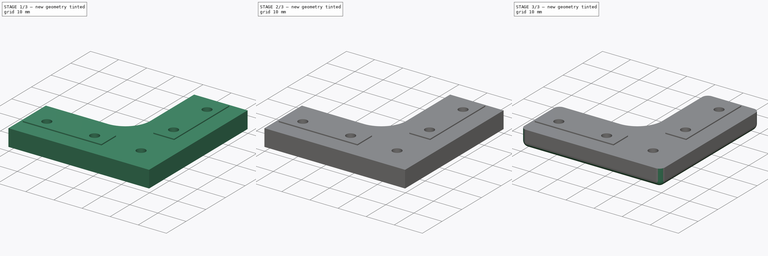
[diagram: build sequence overview — one tinted view per stage of 3, left to right]
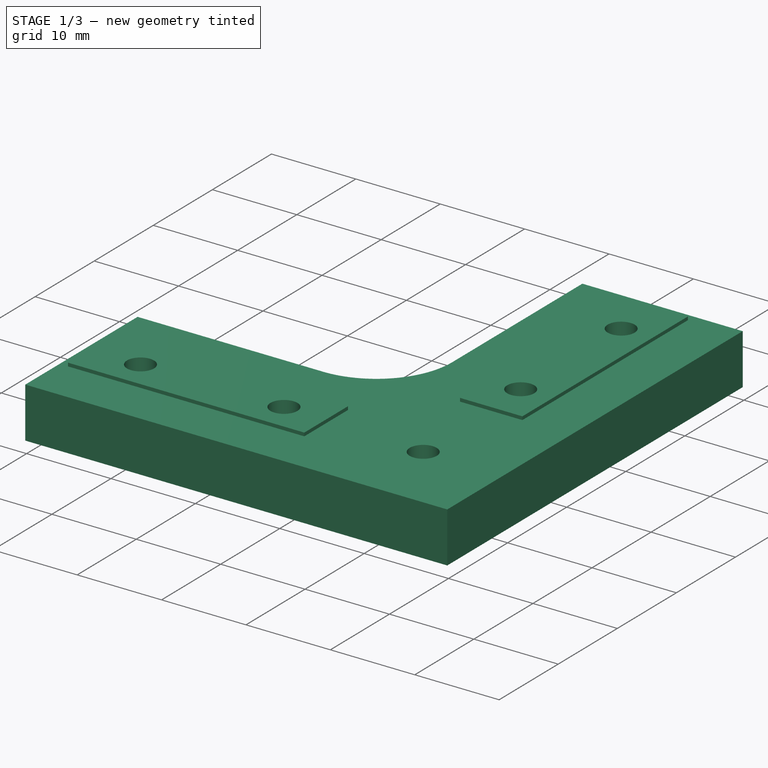
[diagram: stage 1 of 3 — iso view after this stage's code; geometry added in this stage tinted green]
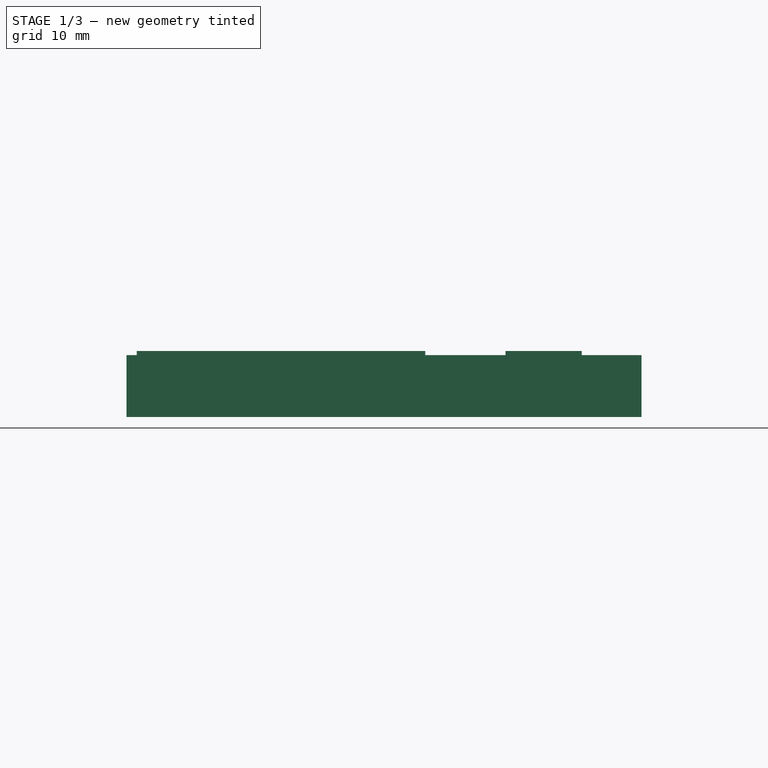
[diagram: stage 1 of 3 — front view after this stage's code; geometry added in this stage tinted green]
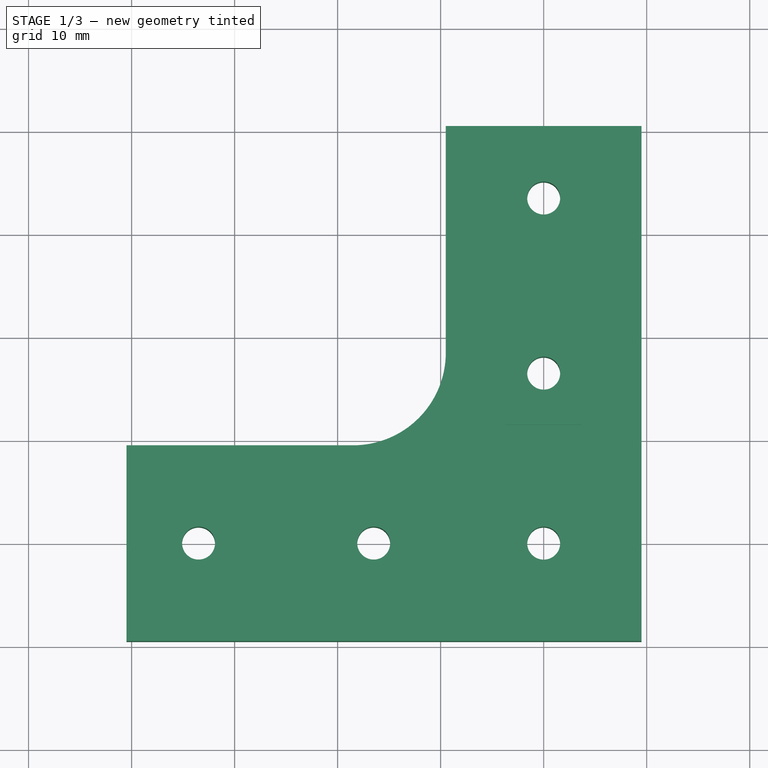
[diagram: stage 1 of 3 — top view after this stage's code; geometry added in this stage tinted green]
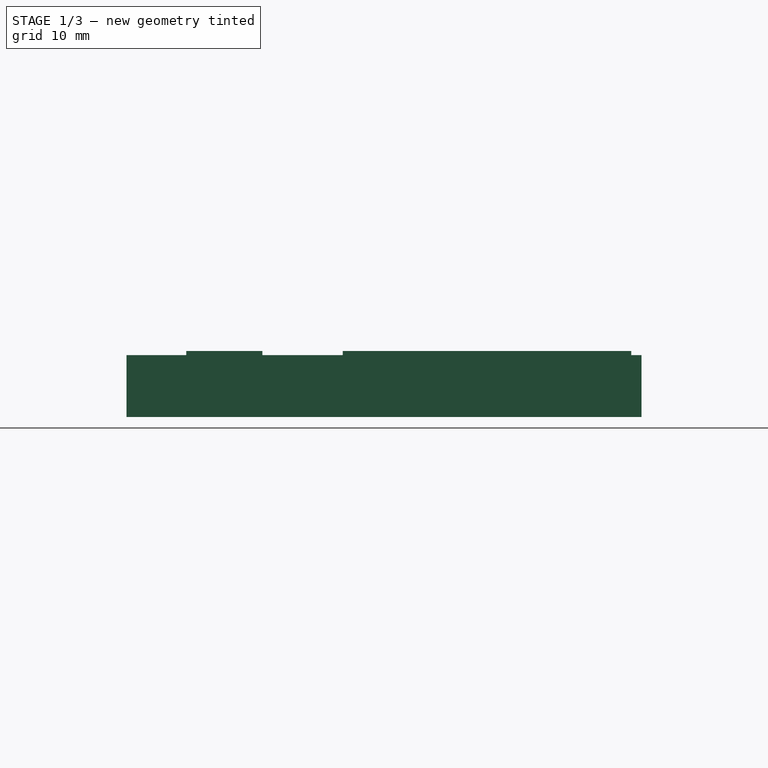
[diagram: stage 1 of 3 — right view after this stage's code; geometry added in this stage tinted green]
FCSTD DOCUMENT  (FreeCAD 0.15R4671 (Git))
Label: up-bracket
License: All rights reserved
LicenseURL: https://ru.wikipedia.org/wiki/All_rights_reserved
objects: Sketcher::SketchObject×6, PartDesign::Pad×3, PartDesign::Pocket×3, PartDesign::Fillet×1, PartDesign::Chamfer×1
note: 20 computed .brp shape members not serialized (recipe doc carries the construction recipe); baked Part::Feature solids carry a one-line shape summary decoded from their .brp

FEATURE [Sketcher::SketchObject] Sketch  label="body"
  sketch-geometry (7):
    g0: LineSegment StartX=-9.5 StartY=40.5 StartZ=0 EndX=9.5 EndY=40.5 EndZ=0
    g1: LineSegment StartX=9.5 StartY=40.5 StartZ=0 EndX=9.5 EndY=-9.5 EndZ=0
    g2: LineSegment StartX=9.5 StartY=-9.5 StartZ=0 EndX=-40.5 EndY=-9.5 EndZ=0
    g3: LineSegment StartX=-40.5 StartY=-9.5 StartZ=0 EndX=-40.5 EndY=9.5 EndZ=0
    g4: LineSegment StartX=-40.5 StartY=9.5 StartZ=0 EndX=-18.5 EndY=9.5 EndZ=0
    g5: LineSegment StartX=-9.5 StartY=18.5 StartZ=0 EndX=-9.5 EndY=40.5 EndZ=0
    g6: ArcOfCircle CenterX=-18.5 CenterY=18.5 CenterZ=0 NormalX=0 NormalY=0 NormalZ=1 Radius=9 StartAngle=4.71239 EndAngle=6.28319
  constraints (20):
    c: Horizontal(g0)
    c: Coincident(g0,g1)
    c: Vertical(g1)
    c: Coincident(g1,g2)
    c: Horizontal(g2)
    c: Coincident(g2,g3)
    c: Vertical(g3)
    c: Coincident(g3,g4)
    c: Horizontal(g4)
    c: Coincident(g5,g0)
    c: Vertical(g5)
    c: Symmetric(g0,g0,g-2)
    c: Symmetric(g3,g2,g-1)
    c: Equal(g0,g3)
    c: Equal(g2,g1)
    c: DistanceX(g2,g1) = 50
    c: DistanceY(g3,g2) = -19
    c: Tangent(g5,g6) = -1.5708
    c: Tangent(g4,g6) = -1.5708
    c: Radius(g6) = 9
FEATURE [PartDesign::Pad] Pad
  Length = 6
  Length2 = 100
  Sketch = -> Sketch
  Type = 0
FEATURE [Sketcher::SketchObject] Sketch001  label="pads"
  ExternalGeometry = -> [Pad]
  Placement = pos=(0,0,6) rot=(0,0,1;0rad)
  Support = -> Pad [Face9]
  sketch-geometry (12):
    g0: LineSegment StartX=-39.5 StartY=3.7 StartZ=0 EndX=-11.5 EndY=3.7 EndZ=0
    g1: LineSegment StartX=-11.5 StartY=3.7 StartZ=0 EndX=-11.5 EndY=-3.7 EndZ=0
    g2: LineSegment StartX=-11.5 StartY=-3.7 StartZ=0 EndX=-39.5 EndY=-3.7 EndZ=0
    g3: LineSegment StartX=-39.5 StartY=-3.7 StartZ=0 EndX=-39.5 EndY=3.7 EndZ=0
    g4: LineSegment StartX=-3.7 StartY=39.5 StartZ=0 EndX=3.7 EndY=39.5 EndZ=0
    g5: LineSegment StartX=3.7 StartY=39.5 StartZ=0 EndX=3.7 EndY=11.5 EndZ=0
    g6: LineSegment StartX=3.7 StartY=11.5 StartZ=0 EndX=-3.7 EndY=11.5 EndZ=0
    g7: LineSegment StartX=-3.7 StartY=11.5 StartZ=0 EndX=-3.7 EndY=39.5 EndZ=0
    g8: LineSegment [constr] StartX=-3.7 StartY=39.5 StartZ=0 EndX=-3.7 EndY=40.5 EndZ=0
    g9: LineSegment [constr] StartX=-39.5 StartY=3.7 StartZ=0 EndX=-40.5 EndY=3.7 EndZ=0
    g10: LineSegment [constr] StartX=-11.5 StartY=0 StartZ=0 EndX=9.5 EndY=0 EndZ=0
    g11: LineSegment [constr] StartX=0 StartY=11.5 StartZ=0 EndX=0 EndY=-9.5 EndZ=0
  constraints (38):
    c: Coincident(g0,g1)
    c: Coincident(g1,g2)
    c: Coincident(g2,g3)
    c: Coincident(g3,g0)
    c: Horizontal(g0)
    c: Horizontal(g2)
    c: Vertical(g1)
    c: Vertical(g3)
    c: Coincident(g4,g5)
    c: Coincident(g5,g6)
    c: Coincident(g6,g7)
    c: Coincident(g7,g4)
    c: Horizontal(g4)
    c: Horizontal(g6)
    c: Vertical(g5)
    c: Vertical(g7)
    c: PointOnObject(g8,g-3)
    c: Vertical(g8)
    c: PointOnObject(g9,g3)
    c: PointOnObject(g9,g-6)
    c: Horizontal(g9)
    c: PointOnObject(g10,g1)
    c: PointOnObject(g10,g-4)
    c: Horizontal(g10)
    c: PointOnObject(g11,g6)
    c: Vertical(g11)
    c: PointOnObject(g8,g4)
    c: Equal(g8,g9)
    c: PointOnObject(g11,g-5)
    c: Equal(g11,g10)
    c: Equal(g1,g6)
    c: Coincident(g4,g8)
    c: Coincident(g0,g9)
    c: Symmetric(g2,g0,g-1)
    c: Symmetric(g4,g4,g-2)
    c: DistanceY(g2,g0) = 7.4
    c: DistanceY(g5,g-5) = -21
    c: DistanceX(g9,g0) = 1
FEATURE [PartDesign::Pad] Pad001
  Length = 0.4
  Length2 = 100
  Sketch = -> Sketch001
  Type = 0
FEATURE [Sketcher::SketchObject] Sketch002  label="m3 holes"
  ExternalGeometry = -> [Pad001]
  Placement = pos=(0,0,0) rot=(1,0,0;3.14159rad)
  Support = -> Pad001 [Face4]
  sketch-geometry (9):
    g0: Circle CenterX=-33.5 CenterY=0 CenterZ=0 NormalX=0 NormalY=0 NormalZ=1 Radius=1.6
    g1: Circle CenterX=-16.5 CenterY=0 CenterZ=0 NormalX=0 NormalY=0 NormalZ=1 Radius=1.6
    g2: Circle CenterX=0 CenterY=-16.5 CenterZ=0 NormalX=0 NormalY=0 NormalZ=1 Radius=1.6
    g3: Circle CenterX=0 CenterY=-33.5 CenterZ=0 NormalX=0 NormalY=0 NormalZ=1 Radius=1.6
    g4: Circle CenterX=0 CenterY=0 CenterZ=0 NormalX=0 NormalY=0 NormalZ=1 Radius=1.6
    g5: LineSegment [constr] StartX=-33.5 StartY=0 StartZ=0 EndX=-40.5 EndY=0 EndZ=0
    g6: LineSegment [constr] StartX=0 StartY=-33.5 StartZ=0 EndX=0 EndY=-40.5 EndZ=0
    g7: LineSegment [constr] StartX=-16.5 StartY=0 StartZ=0 EndX=9.5 EndY=0 EndZ=0
    g8: LineSegment [constr] StartX=0 StartY=-16.5 StartZ=0 EndX=0 EndY=9.5 EndZ=0
  constraints (26):
    c: PointOnObject(g0,g-1)
    c: PointOnObject(g1,g-1)
    c: PointOnObject(g2,g-2)
    c: PointOnObject(g3,g-2)
    c: Equal(g3,g2)
    c: Equal(g2,g1)
    c: Equal(g1,g0)
    c: Radius(g0) = 1.6
    c: Coincident(g5,g0)
    c: PointOnObject(g5,g-3)
    c: Horizontal(g5)
    c: Coincident(g6,g3)
    c: PointOnObject(g6,g-4)
    c: Vertical(g6)
    c: Coincident(g7,g1)
    c: PointOnObject(g7,g-6)
    c: Horizontal(g7)
    c: Coincident(g8,g2)
    c: PointOnObject(g8,g-5)
    c: Vertical(g8)
    c: DistanceX(g5) = -7
    c: Equal(g6,g5)
    c: Equal(g8,g7)
    c: DistanceX(g7) = 26
    c: Coincident(g4,g-1)
    c: Equal(g1,g4)
FEATURE [PartDesign::Pocket] Pocket
  Length = 5
  Sketch = -> Sketch002
  Type = 1
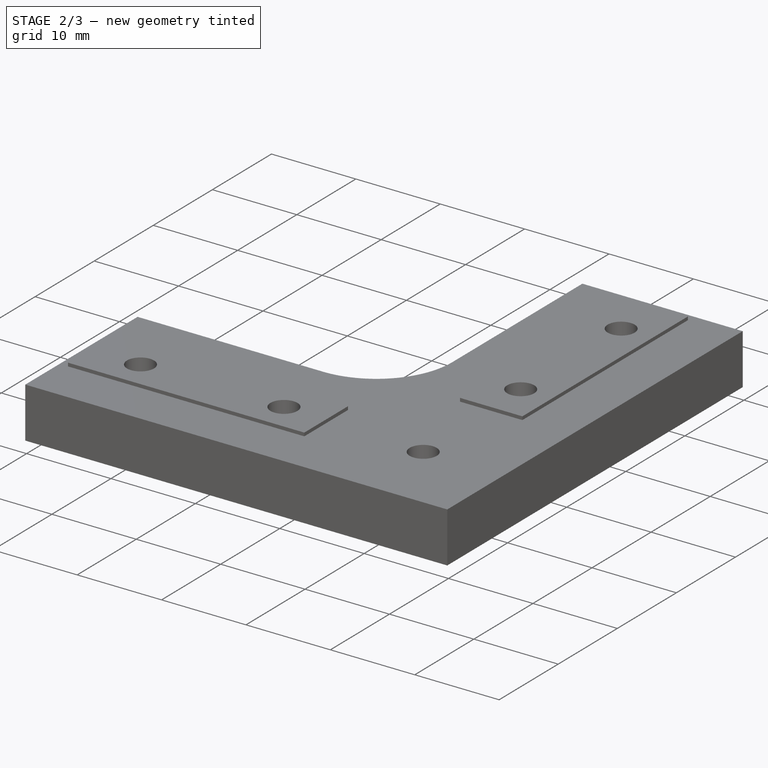
[diagram: stage 2 of 3 — iso view after this stage's code; geometry added in this stage tinted green]
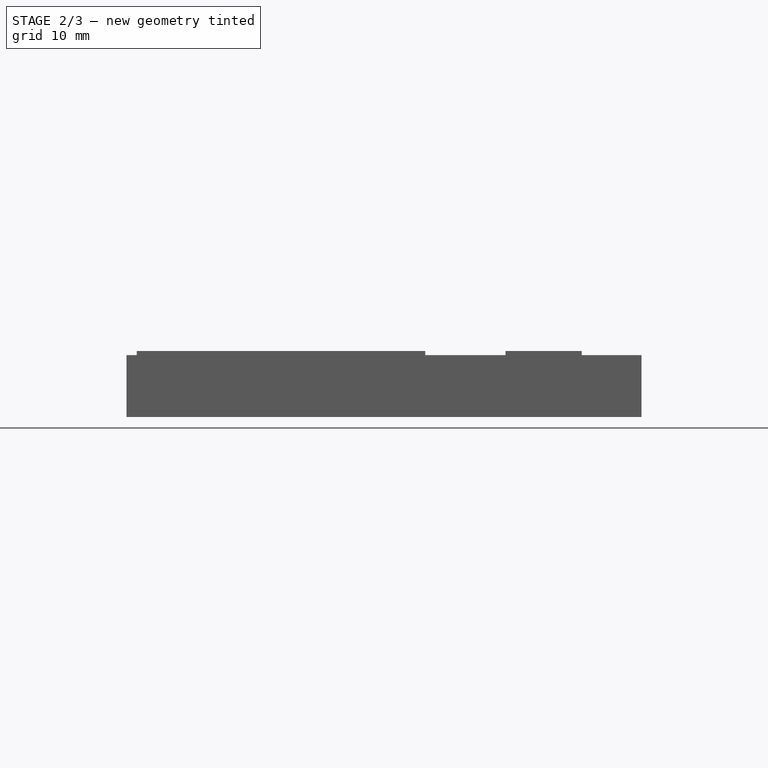
[diagram: stage 2 of 3 — front view after this stage's code; geometry added in this stage tinted green]
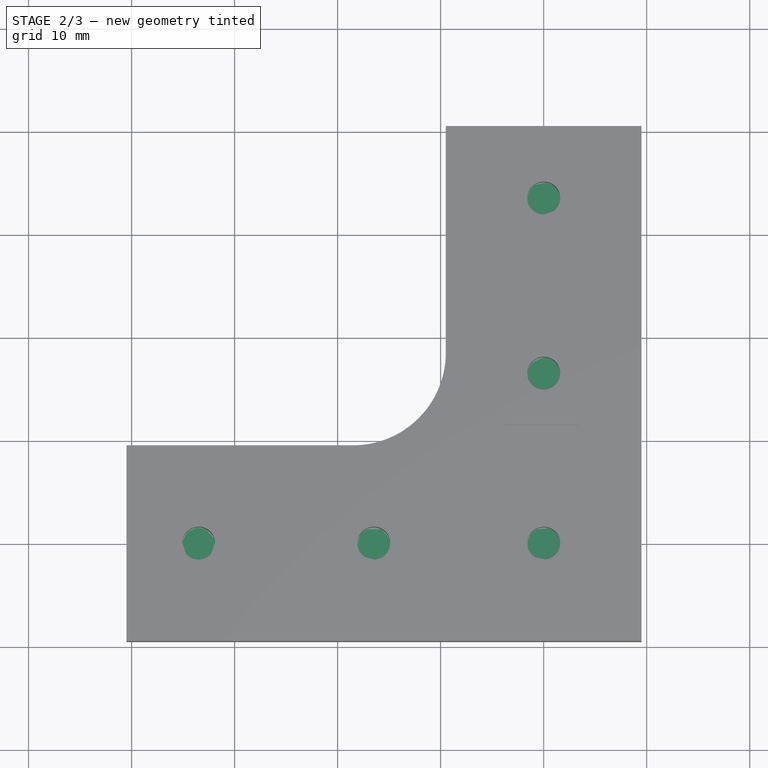
[diagram: stage 2 of 3 — top view after this stage's code; geometry added in this stage tinted green]
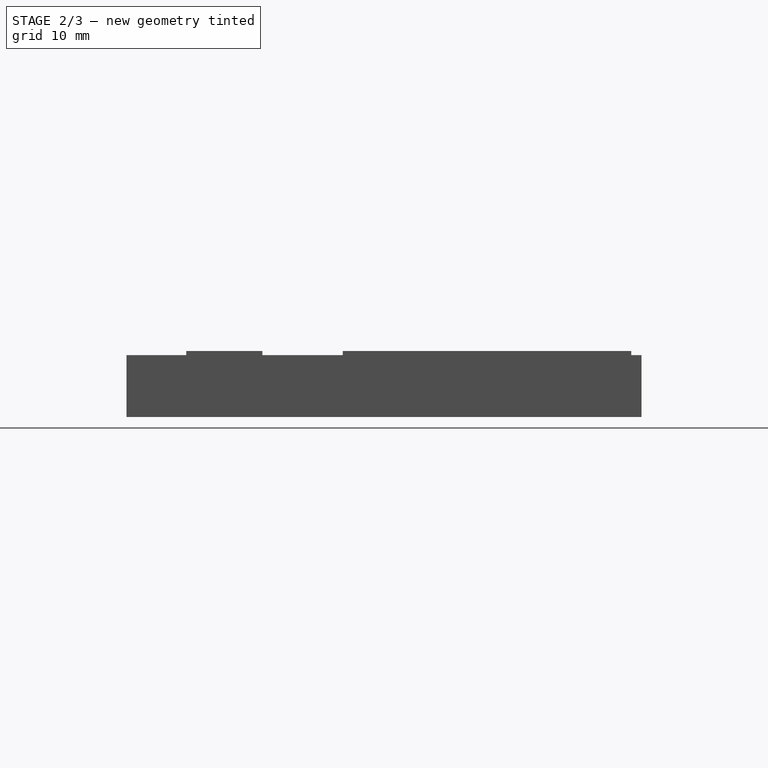
[diagram: stage 2 of 3 — right view after this stage's code; geometry added in this stage tinted green]
FEATURE [Sketcher::SketchObject] Sketch003  label="m3 heads"
  ExternalGeometry = -> [Pocket]
  Placement = pos=(0,0,0) rot=(1,0,0;3.14159rad)
  Support = -> Pocket [Face4]
  sketch-geometry (9):
    g0: LineSegment [constr] StartX=-40.5 StartY=0 StartZ=0 EndX=-33.5 EndY=0 EndZ=0
    g1: LineSegment [constr] StartX=-16.5 StartY=0 StartZ=0 EndX=9.5 EndY=0 EndZ=0
    g2: LineSegment [constr] StartX=0 StartY=-33.5 StartZ=0 EndX=0 EndY=-40.5 EndZ=0
    g3: LineSegment [constr] StartX=0 StartY=-16.5 StartZ=0 EndX=0 EndY=9.5 EndZ=0
    g4: Circle CenterX=-33.5 CenterY=0 CenterZ=0 NormalX=0 NormalY=0 NormalZ=1 Radius=3
    g5: Circle CenterX=-16.5 CenterY=0 CenterZ=0 NormalX=0 NormalY=0 NormalZ=1 Radius=3
    g6: Circle CenterX=0 CenterY=-16.5 CenterZ=0 NormalX=0 NormalY=0 NormalZ=1 Radius=3
    g7: Circle CenterX=0 CenterY=-33.5 CenterZ=0 NormalX=0 NormalY=0 NormalZ=1 Radius=3
    g8: Circle CenterX=0 CenterY=0 CenterZ=0 NormalX=0 NormalY=0 NormalZ=1 Radius=3
  constraints (26):
    c: PointOnObject(g0,g-3)
    c: PointOnObject(g0,g-1)
    c: Horizontal(g0)
    c: PointOnObject(g1,g-1)
    c: PointOnObject(g1,g-5)
    c: Horizontal(g1)
    c: Vertical(g2)
    c: PointOnObject(g3,g-2)
    c: Vertical(g3)
    c: PointOnObject(g3,g-4)
    c: PointOnObject(g2,g-2)
    c: PointOnObject(g2,g-6)
    c: Equal(g2,g0)
    c: Equal(g3,g1)
    c: DistanceX(g0) = 7
    c: DistanceX(g1) = 26
    c: Coincident(g4,g0)
    c: Coincident(g5,g1)
    c: Coincident(g6,g3)
    c: Coincident(g7,g2)
    c: Equal(g6,g5)
    c: Equal(g5,g4)
    c: Equal(g4,g7)
    c: Radius(g4) = 3
    c: Coincident(g8,g-1)
    c: Equal(g4,g8)
FEATURE [PartDesign::Pocket] Pocket001
  Length = 1
  Sketch = -> Sketch003
  Type = 0
FEATURE [Sketcher::SketchObject] Sketch006
  Placement = pos=(0,0,1) rot=(1,0,0;3.14159rad)
  Support = -> Pocket001 [Face25]
  sketch-geometry (6):
    g0: LineSegment StartX=-36.5918 StartY=5.29161 StartZ=0 EndX=5.97703 EndY=5.29161 EndZ=0
    g1: LineSegment StartX=-5.6131 StartY=-6.29852 StartZ=0 EndX=-36.5918 EndY=-6.29852 EndZ=0
    g2: LineSegment StartX=-36.5918 StartY=-6.29852 StartZ=0 EndX=-36.5918 EndY=5.29161 EndZ=0
    g3: LineSegment StartX=5.97703 StartY=5.29161 StartZ=0 EndX=5.97703 EndY=-37.2772 EndZ=0
    g4: LineSegment StartX=5.97703 StartY=-37.2772 StartZ=0 EndX=-5.6131 EndY=-37.2772 EndZ=0
    g5: LineSegment StartX=-5.6131 StartY=-37.2772 StartZ=0 EndX=-5.6131 EndY=-6.29852 EndZ=0
  constraints (15):
    c: Coincident(g1,g2)
    c: Coincident(g2,g0)
    c: Horizontal(g0)
    c: Horizontal(g1)
    c: Vertical(g2)
    c: Coincident(g3,g4)
    c: Coincident(g4,g5)
    c: Horizontal(g4)
    c: Vertical(g3)
    c: Vertical(g5)
    c: PointOnObject(g5,g1)
    c: PointOnObject(g1,g5)
    c: Equal(g5,g1)
    c: Equal(g0,g3)
    c: Coincident(g3,g0)
FEATURE [PartDesign::Pad] Pad002
  Length = 0.2
  Length2 = 100
  Reversed = true
  Sketch = -> Sketch006
  Type = 0
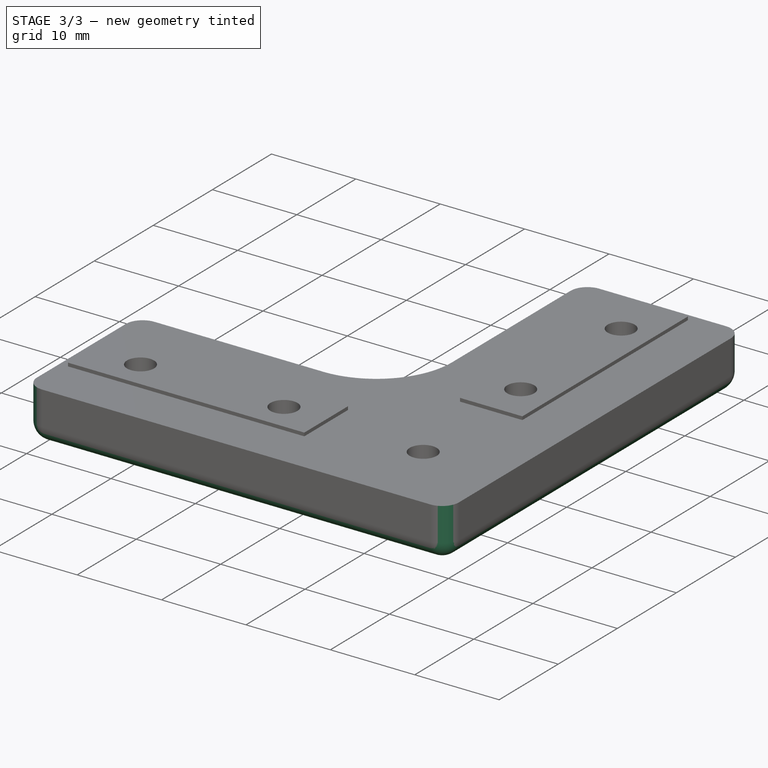
[diagram: stage 3 of 3 — iso view after this stage's code; geometry added in this stage tinted green]
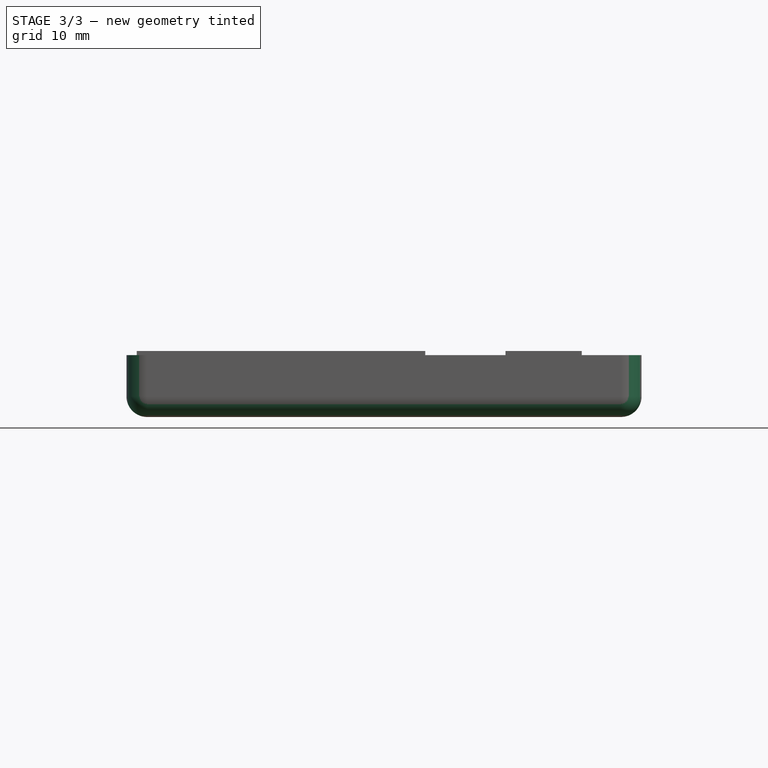
[diagram: stage 3 of 3 — front view after this stage's code; geometry added in this stage tinted green]
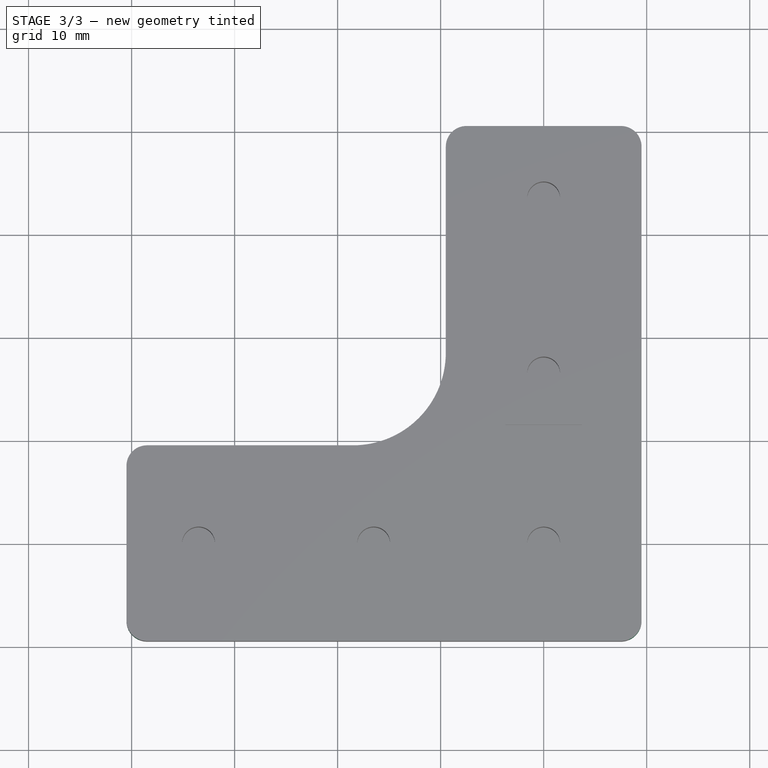
[diagram: stage 3 of 3 — top view after this stage's code; geometry added in this stage tinted green]
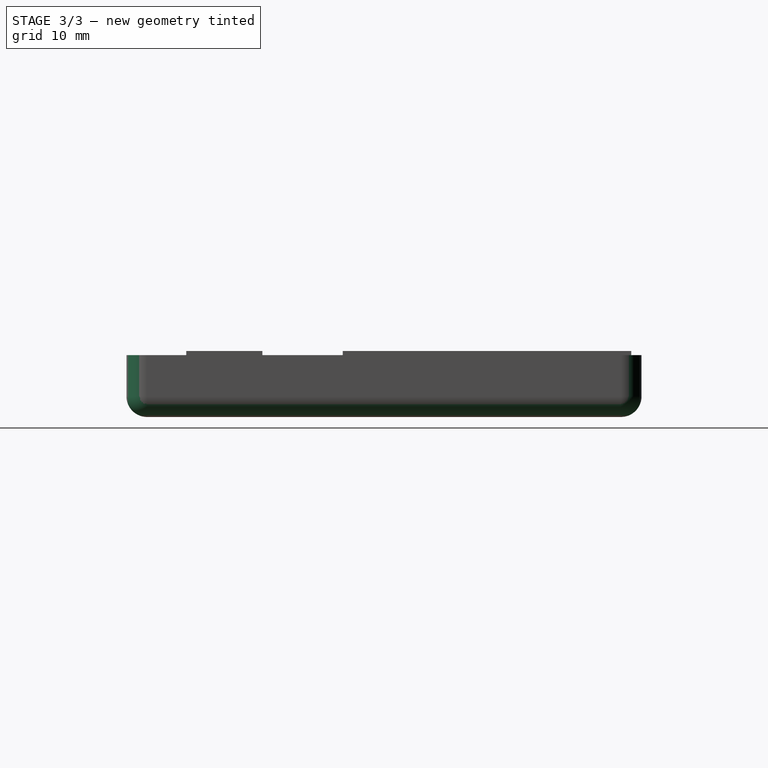
[diagram: stage 3 of 3 — right view after this stage's code; geometry added in this stage tinted green]
FEATURE [Sketcher::SketchObject] Sketch007  label="cup pocket"
  Placement = pos=(0,0,6) rot=(0,0,1;0rad)
  Support = -> Pad002 [Face5]
  sketch-geometry (1):
    g0: Circle CenterX=0 CenterY=0 CenterZ=0 NormalX=0 NormalY=0 NormalZ=1 Radius=1
  constraints (2):
    c: Coincident(g0,g-1)
    c: Radius(g0) = 1
FEATURE [PartDesign::Pocket] Pocket002
  Length = 0.01
  Reversed = true
  Sketch = -> Sketch007
  Type = 0
FEATURE [PartDesign::Fillet] Fillet
  Base = -> Pocket002 [Edge35,Edge13,Edge11,Edge6,Edge3,Edge9,Edge8,Edge2,Edge1,Edge14,Edge34,Edge12]
  Radius = 2
FEATURE [PartDesign::Chamfer] Chamfer
  Base = -> Fillet [Edge78,Edge77,Edge80,Edge79,Edge81]
  Size = 0.4
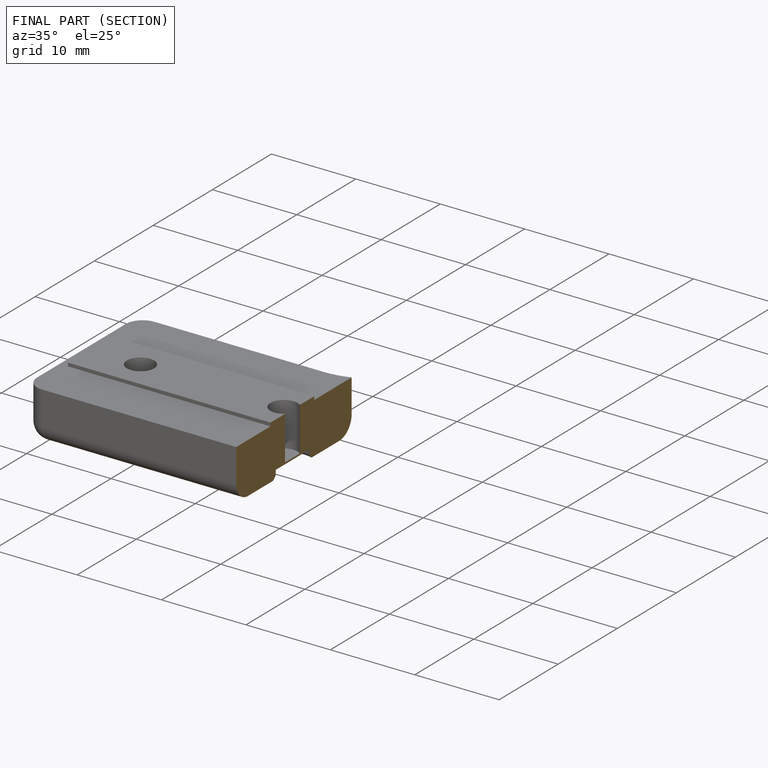
[diagram: finished part — half-section view (interior)]
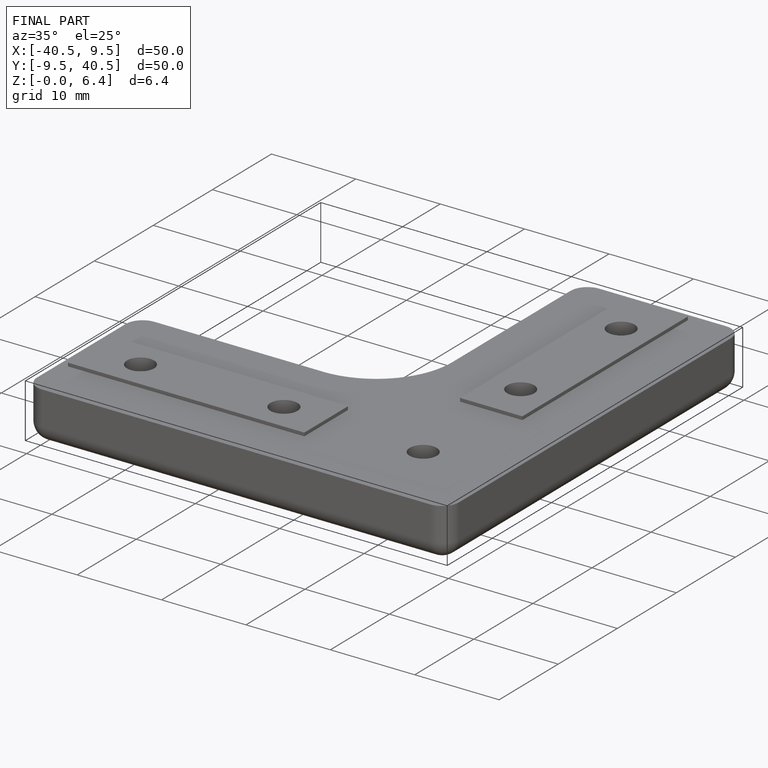
[diagram: finished part — iso view with bounding-box wireframe]
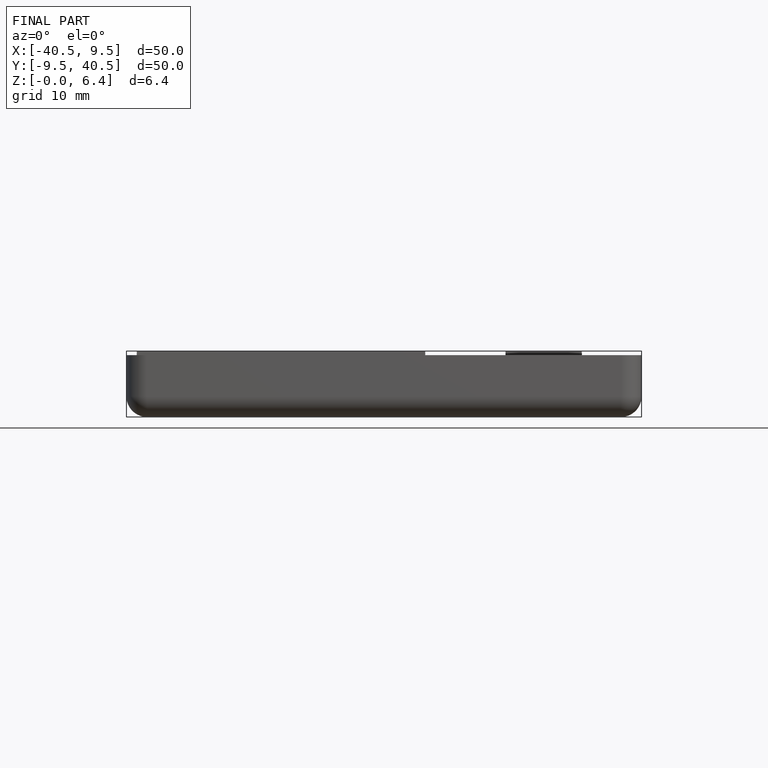
[diagram: finished part — front view with bounding-box wireframe]
